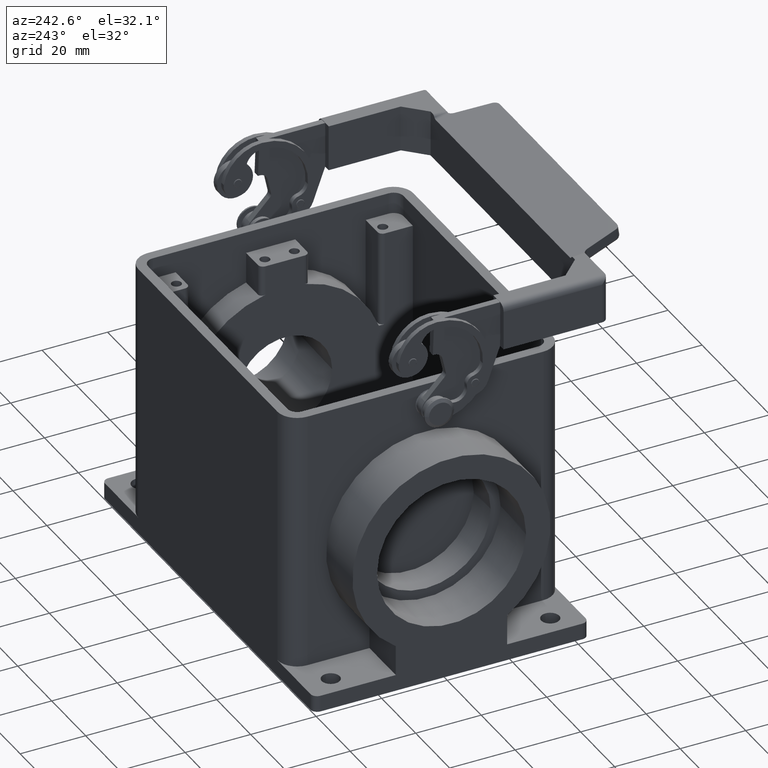
[diagram: clean part render]
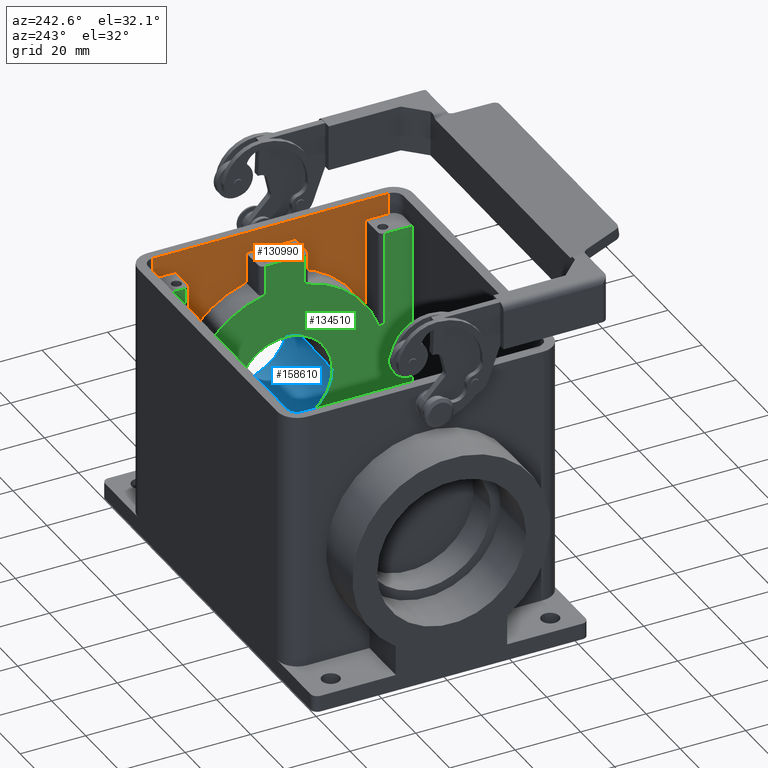
[diagram: same view with three faces highlighted in distinct colors, each labeled with its STEP entity id]
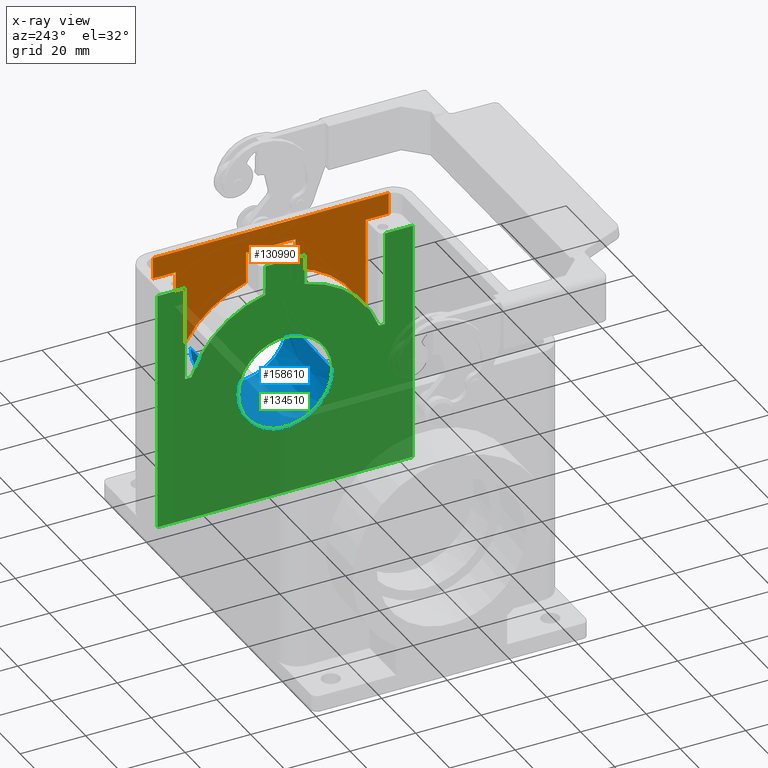
[diagram: x-ray of the same camera — body ghosted, the three highlighted faces saturated]
A machine part, auxiliary view with three faces highlighted in distinct colors.
The next image is the same camera in x-ray (body ghosted, the three faces saturated) — at least one of them is partly hidden behind the body in this view.
Their STEP definitions:

[orange] entity #130990 — the highlighted planar face has unit normal (-1, 0, 0).
#6710=CARTESIAN_POINT('',(43.999,-28.632235330131,-6.00000000000003));
#6720=VERTEX_POINT('',#6710);
#7120=CARTESIAN_POINT('',(43.999,-7.49999999999998,13.5455028962138));
#7130=VERTEX_POINT('',#7120);
#7160=CARTESIAN_POINT('',(43.999,2.44249065417534E-15,-15.7600000000001)
);
#7170=DIRECTION('',(1.,0.,0.));
#7180=DIRECTION('',(0.,1.,0.));
#7190=AXIS2_PLACEMENT_3D('',#7160,#7170,#7180);
#7200=CIRCLE('',#7190,30.25);
#7210=EDGE_CURVE('',#7130,#6720,#7200,.T.);
#44780=CARTESIAN_POINT('',(44.,36.,29.5));
#44790=VERTEX_POINT('',#44780);
#44820=CARTESIAN_POINT('',(44.,36.,29.5));
#44830=DIRECTION('',(0.,0.,-1.));
#44840=VECTOR('',#44830,1.);
#44850=LINE('',#44820,#44840);
#44860=CARTESIAN_POINT('',(44.,36.,23.));
#44870=VERTEX_POINT('',#44860);
#44880=EDGE_CURVE('',#44790,#44870,#44850,.T.);
#59670=CARTESIAN_POINT('',(44.,7.49999999999998,23.));
#59680=VERTEX_POINT('',#59670);
#59710=CARTESIAN_POINT('',(43.999,0.,23.));
#59720=DIRECTION('',(-0.,-1.,0.));
#59730=VECTOR('',#59720,1.);
#59740=LINE('',#59710,#59730);
#59750=CARTESIAN_POINT('',(44.,-7.5,23.));
#59760=VERTEX_POINT('',#59750);
#59770=EDGE_CURVE('',#59680,#59760,#59740,.T.);
#77930=CARTESIAN_POINT('',(43.999,-7.5,0.));
#77940=DIRECTION('',(-0.,0.,-1.));
#77950=VECTOR('',#77940,1.);
#77960=LINE('',#77930,#77950);
#77970=EDGE_CURVE('',#59760,#7130,#77960,.T.);
#105230=CARTESIAN_POINT('',(44.,-36.,29.5));
#105240=VERTEX_POINT('',#105230);
#105270=CARTESIAN_POINT('',(43.999,0.,29.5));
#105280=DIRECTION('',(-0.,-1.,0.));
#105290=VECTOR('',#105280,1.);
#105300=LINE('',#105270,#105290);
#105310=EDGE_CURVE('',#44790,#105240,#105300,.T.);
#130230=CARTESIAN_POINT('',(43.999,-1.8,23.2));
#130240=DIRECTION('',(-1.,0.,0.));
#130250=DIRECTION('',(0.,1.,0.));
#130260=AXIS2_PLACEMENT_3D('',#130230,#130240,#130250);
#130270=PLANE('',#130260);
#130280=ORIENTED_EDGE('',*,*,#77970,.T.);
#130290=ORIENTED_EDGE('',*,*,#59770,.T.);
#130300=CARTESIAN_POINT('',(43.999,7.49999999999998,0.));
#130310=DIRECTION('',(0.,0.,1.));
#130320=VECTOR('',#130310,1.);
#130330=LINE('',#130300,#130320);
#130340=CARTESIAN_POINT('',(44.,7.49999999999998,13.5455028962138));
#130350=VERTEX_POINT('',#130340);
#130360=EDGE_CURVE('',#130350,#59680,#130330,.T.);
#130370=ORIENTED_EDGE('',*,*,#130360,.T.);
#130380=CARTESIAN_POINT('',(44.,28.632235330131,-6.00000000000001));
#130390=VERTEX_POINT('',#130380);
#130400=EDGE_CURVE('',#130390,#130350,#7200,.T.);
#130410=ORIENTED_EDGE('',*,*,#130400,.T.);
#130420=CARTESIAN_POINT('',(43.999,0.,-6.00000000000001));
#130430=DIRECTION('',(-0.,-1.,0.));
#130440=VECTOR('',#130430,1.);
#130450=LINE('',#130420,#130440);
#130460=CARTESIAN_POINT('',(44.,29.,-6.00000000000001));
#130470=VERTEX_POINT('',#130460);
#130480=EDGE_CURVE('',#130470,#130390,#130450,.T.);
#130490=ORIENTED_EDGE('',*,*,#130480,.T.);
#130500=CARTESIAN_POINT('',(43.999,29.,0.));
#130510=DIRECTION('',(-0.,0.,-1.));
#130520=VECTOR('',#130510,1.);
#130530=LINE('',#130500,#130520);
#130540=CARTESIAN_POINT('',(44.,29.,23.));
#130550=VERTEX_POINT('',#130540);
#130560=EDGE_CURVE('',#130550,#130470,#130530,.T.);
#130570=ORIENTED_EDGE('',*,*,#130560,.T.);
#130580=CARTESIAN_POINT('',(43.999,0.,23.));
#130590=DIRECTION('',(-0.,-1.,0.));
#130600=VECTOR('',#130590,1.);
#130610=LINE('',#130580,#130600);
#130620=EDGE_CURVE('',#44870,#130550,#130610,.T.);
#130630=ORIENTED_EDGE('',*,*,#130620,.T.);
#130640=ORIENTED_EDGE('',*,*,#44880,.T.);
#130650=ORIENTED_EDGE('',*,*,#105310,.F.);
#130660=CARTESIAN_POINT('',(44.,-36.,29.5));
#130670=DIRECTION('',(0.,0.,-1.));
#130680=VECTOR('',#130670,1.);
#130690=LINE('',#130660,#130680);
#130700=CARTESIAN_POINT('',(44.,-36.,23.));
#130710=VERTEX_POINT('',#130700);
#130720=EDGE_CURVE('',#105240,#130710,#130690,.T.);
#130730=ORIENTED_EDGE('',*,*,#130720,.F.);
#130740=CARTESIAN_POINT('',(43.999,0.,23.));
#130750=DIRECTION('',(-0.,-1.,0.));
#130760=VECTOR('',#130750,1.);
#130770=LINE('',#130740,#130760);
#130780=CARTESIAN_POINT('',(44.,-29.,23.));
#130790=VERTEX_POINT('',#130780);
#130800=EDGE_CURVE('',#130790,#130710,#130770,.T.);
#130810=ORIENTED_EDGE('',*,*,#130800,.T.);
#130820=CARTESIAN_POINT('',(43.999,-29.,0.));
#130830=DIRECTION('',(0.,0.,1.));
#130840=VECTOR('',#130830,1.);
#130850=LINE('',#130820,#130840);
#130860=CARTESIAN_POINT('',(44.,-29.,-6.00000000000001));
#130870=VERTEX_POINT('',#130860);
#130880=EDGE_CURVE('',#130870,#130790,#130850,.T.);
#130890=ORIENTED_EDGE('',*,*,#130880,.T.);
#130900=CARTESIAN_POINT('',(43.999,0.,-6.00000000000001));
#130910=DIRECTION('',(-0.,-1.,0.));
#130920=VECTOR('',#130910,1.);
#130930=LINE('',#130900,#130920);
#130940=EDGE_CURVE('',#6720,#130870,#130930,.T.);
#130950=ORIENTED_EDGE('',*,*,#130940,.T.);
#130960=ORIENTED_EDGE('',*,*,#7210,.T.);
#130970=EDGE_LOOP('',(#130960,#130950,#130890,#130810,#130730,#130650,
#130640,#130630,#130570,#130490,#130410,#130370,#130290,#130280));
#130980=FACE_OUTER_BOUND('',#130970,.T.);
#130990=ADVANCED_FACE('',(#130980),#130270,.T.);

[blue] entity #158610 — the highlighted conical surface has half-angle 1 deg.
#133620=CARTESIAN_POINT('',(35.5,0.,-15.76));
#133630=DIRECTION('',(1.,0.,0.));
#133640=DIRECTION('',(0.,1.,0.));
#133650=AXIS2_PLACEMENT_3D('',#133620,#133630,#133640);
#133660=CIRCLE('',#133650,14.3787132469381);
#133670=CARTESIAN_POINT('',(35.5,14.3787132469381,-15.76));
#133680=VERTEX_POINT('',#133670);
#133690=CARTESIAN_POINT('',(35.5,-14.3787132469381,-15.76));
#133700=VERTEX_POINT('',#133690);
#133730=EDGE_CURVE('',#133700,#133680,#133660,.T.);
#143130=CARTESIAN_POINT('',(62.5,0.,-15.76));
#143140=DIRECTION('',(1.,0.,0.));
#143150=DIRECTION('',(0.,1.,0.));
#143160=AXIS2_PLACEMENT_3D('',#143130,#143140,#143150);
#143170=CIRCLE('',#143160,14.85);
#143180=CARTESIAN_POINT('',(62.5,14.85,-15.76));
#143190=VERTEX_POINT('',#143180);
#143200=CARTESIAN_POINT('',(62.5,-14.85,-15.76));
#143210=VERTEX_POINT('',#143200);
#143240=EDGE_CURVE('',#143210,#143190,#143170,.T.);
#158400=CARTESIAN_POINT('',(62.5,0.,-15.76));
#158410=DIRECTION('',(1.,0.,0.));
#158420=DIRECTION('',(0.,1.,0.));
#158430=AXIS2_PLACEMENT_3D('',#158400,#158410,#158420);
#158440=CONICAL_SURFACE('',#158430,14.85,0.0174532925199433);
#158450=CARTESIAN_POINT('',(62.5,-14.85,-15.76));
#158460=DIRECTION('',(0.999847695156391,-0.0174524064372835,
2.0876566692836E-18));
#158470=VECTOR('',#158460,850.88552420347);
#158480=LINE('',#158450,#158470);
#158490=EDGE_CURVE('',#133700,#143210,#158480,.T.);
#158500=ORIENTED_EDGE('',*,*,#158490,.T.);
#158510=ORIENTED_EDGE('',*,*,#133730,.F.);
#158520=CARTESIAN_POINT('',(62.5,14.85,-15.76));
#158530=DIRECTION('',(0.999847695156391,0.0174524064372835,0.));
#158540=VECTOR('',#158530,850.88552420347);
#158550=LINE('',#158520,#158540);
#158560=EDGE_CURVE('',#133680,#143190,#158550,.T.);
#158570=ORIENTED_EDGE('',*,*,#158560,.F.);
#158580=ORIENTED_EDGE('',*,*,#143240,.T.);
#158590=EDGE_LOOP('',(#158580,#158570,#158510,#158500));
#158600=FACE_OUTER_BOUND('',#158590,.T.);
#158610=ADVANCED_FACE('',(#158600),#158440,.F.);

[green] entity #134510 — the highlighted planar face has unit normal (-1, 0, 0).
#6690=CARTESIAN_POINT('',(35.5,-28.632235330131,-6.00000000000002));
#6700=VERTEX_POINT('',#6690);
#6750=CARTESIAN_POINT('',(35.5,7.28306304154103E-14,-15.7600000000001));
#6760=DIRECTION('',(-1.,0.,0.));
#6770=DIRECTION('',(0.,1.,0.));
#6780=AXIS2_PLACEMENT_3D('',#6750,#6760,#6770);
#6790=CIRCLE('',#6780,30.2500000000002);
#6800=CARTESIAN_POINT('',(35.5,-5.99999999999999,13.8889881783511));
#6810=VERTEX_POINT('',#6800);
#6820=EDGE_CURVE('',#6700,#6810,#6790,.T.);
#59590=CARTESIAN_POINT('',(35.5,5.99999999999998,23.));
#59600=VERTEX_POINT('',#59590);
#59920=CARTESIAN_POINT('',(35.5,-6.,23.));
#59930=VERTEX_POINT('',#59920);
#59960=CARTESIAN_POINT('',(35.5,0.,23.));
#59970=DIRECTION('',(-0.,-1.,0.));
#59980=VECTOR('',#59970,1.);
#59990=LINE('',#59960,#59980);
#60000=EDGE_CURVE('',#59600,#59930,#59990,.T.);
#80080=CARTESIAN_POINT('',(35.5,39.,-51.));
#80090=VERTEX_POINT('',#80080);
#80490=CARTESIAN_POINT('',(35.5,39.,23.));
#80500=VERTEX_POINT('',#80490);
#80530=CARTESIAN_POINT('',(35.5,39.,0.));
#80540=DIRECTION('',(0.,0.,1.));
#80550=VECTOR('',#80540,1.);
#80560=LINE('',#80530,#80550);
#80570=EDGE_CURVE('',#80090,#80500,#80560,.T.);
#118970=CARTESIAN_POINT('',(35.5,-39.,-51.));
#118980=VERTEX_POINT('',#118970);
#119010=CARTESIAN_POINT('',(35.5,-39.,0.));
#119020=DIRECTION('',(0.,0.,-1.));
#119030=VECTOR('',#119020,1.);
#119040=LINE('',#119010,#119030);
#119050=CARTESIAN_POINT('',(35.5,-39.,23.));
#119060=VERTEX_POINT('',#119050);
#119070=EDGE_CURVE('',#119060,#118980,#119040,.T.);
#133380=CARTESIAN_POINT('',(35.5,-6.,23.));
#133390=DIRECTION('',(0.,0.,-1.));
#133400=VECTOR('',#133390,1.);
#133410=LINE('',#133380,#133400);
#133420=EDGE_CURVE('',#59930,#6810,#133410,.T.);
#133570=CARTESIAN_POINT('',(35.5,-46.8,-58.4));
#133580=DIRECTION('',(-1.,0.,0.));
#133590=DIRECTION('',(0.,1.,0.));
#133600=AXIS2_PLACEMENT_3D('',#133570,#133580,#133590);
#133610=PLANE('',#133600);
#133620=CARTESIAN_POINT('',(35.5,0.,-15.76));
#133630=DIRECTION('',(1.,0.,0.));
#133640=DIRECTION('',(0.,1.,0.));
#133650=AXIS2_PLACEMENT_3D('',#133620,#133630,#133640);
#133660=CIRCLE('',#133650,14.3787132469381);
#133670=CARTESIAN_POINT('',(35.5,14.3787132469381,-15.76));
#133680=VERTEX_POINT('',#133670);
#133690=CARTESIAN_POINT('',(35.5,-14.3787132469381,-15.76));
#133700=VERTEX_POINT('',#133690);
#133710=EDGE_CURVE('',#133680,#133700,#133660,.T.);
#133720=ORIENTED_EDGE('',*,*,#133710,.T.);
#133730=EDGE_CURVE('',#133700,#133680,#133660,.T.);
#133740=ORIENTED_EDGE('',*,*,#133730,.T.);
#133750=EDGE_LOOP('',(#133740,#133720));
#133760=FACE_BOUND('',#133750,.T.);
#133770=ORIENTED_EDGE('',*,*,#80570,.F.);
#133780=CARTESIAN_POINT('',(35.5,0.,23.));
#133790=DIRECTION('',(-0.,-1.,0.));
#133800=VECTOR('',#133790,1.);
#133810=LINE('',#133780,#133800);
#133820=CARTESIAN_POINT('',(35.5,30.5,23.));
#133830=VERTEX_POINT('',#133820);
#133840=EDGE_CURVE('',#80500,#133830,#133810,.T.);
#133850=ORIENTED_EDGE('',*,*,#133840,.F.);
#133860=CARTESIAN_POINT('',(35.5,30.5,23.));
#133870=DIRECTION('',(0.,0.,-1.));
#133880=VECTOR('',#133870,1.);
#133890=LINE('',#133860,#133880);
#133900=CARTESIAN_POINT('',(35.5,30.5,-6.00000000000001));
#133910=VERTEX_POINT('',#133900);
#133920=EDGE_CURVE('',#133830,#133910,#133890,.T.);
#133930=ORIENTED_EDGE('',*,*,#133920,.F.);
#133940=CARTESIAN_POINT('',(35.5,0.,-6.00000000000001));
#133950=DIRECTION('',(0.,1.,-0.));
#133960=VECTOR('',#133950,1.);
#133970=LINE('',#133940,#133960);
#133980=CARTESIAN_POINT('',(35.5,28.632235330131,-6.00000000000002));
#133990=VERTEX_POINT('',#133980);
#134000=EDGE_CURVE('',#133990,#133910,#133970,.T.);
#134010=ORIENTED_EDGE('',*,*,#134000,.T.);
#134020=CARTESIAN_POINT('',(35.5,1.4210854715202E-14,-15.76));
#134030=DIRECTION('',(-1.,0.,0.));
#134040=DIRECTION('',(0.,1.,0.));
#134050=AXIS2_PLACEMENT_3D('',#134020,#134030,#134040);
#134060=CIRCLE('',#134050,30.25);
#134070=CARTESIAN_POINT('',(35.5,5.99999999999998,13.888988178351));
#134080=VERTEX_POINT('',#134070);
#134090=EDGE_CURVE('',#134080,#133990,#134060,.T.);
#134100=ORIENTED_EDGE('',*,*,#134090,.T.);
#134110=CARTESIAN_POINT('',(35.5,5.99999999999998,23.));
#134120=DIRECTION('',(0.,0.,-1.));
#134130=VECTOR('',#134120,1.);
#134140=LINE('',#134110,#134130);
#134150=EDGE_CURVE('',#59600,#134080,#134140,.T.);
#134160=ORIENTED_EDGE('',*,*,#134150,.T.);
#134170=ORIENTED_EDGE('',*,*,#60000,.F.);
#134180=ORIENTED_EDGE('',*,*,#133420,.F.);
#134190=ORIENTED_EDGE('',*,*,#6820,.T.);
#134200=CARTESIAN_POINT('',(35.5,0.,-6.00000000000001));
#134210=DIRECTION('',(0.,1.,-0.));
#134220=VECTOR('',#134210,1.);
#134230=LINE('',#134200,#134220);
#134240=CARTESIAN_POINT('',(35.5,-30.5,-6.00000000000001));
#134250=VERTEX_POINT('',#134240);
#134260=EDGE_CURVE('',#134250,#6700,#134230,.T.);
#134270=ORIENTED_EDGE('',*,*,#134260,.T.);
#134280=CARTESIAN_POINT('',(35.5,-30.5,23.));
#134290=DIRECTION('',(0.,0.,-1.));
#134300=VECTOR('',#134290,1.);
#134310=LINE('',#134280,#134300);
#134320=CARTESIAN_POINT('',(35.5,-30.5,23.));
#134330=VERTEX_POINT('',#134320);
#134340=EDGE_CURVE('',#134330,#134250,#134310,.T.);
#134350=ORIENTED_EDGE('',*,*,#134340,.T.);
#134360=CARTESIAN_POINT('',(35.5,0.,23.));
#134370=DIRECTION('',(-0.,-1.,0.));
#134380=VECTOR('',#134370,1.);
#134390=LINE('',#134360,#134380);
#134400=EDGE_CURVE('',#134330,#119060,#134390,.T.);
#134410=ORIENTED_EDGE('',*,*,#134400,.F.);
#134420=ORIENTED_EDGE('',*,*,#119070,.F.);
#134430=CARTESIAN_POINT('',(35.5,0.,-51.));
#134440=DIRECTION('',(0.,1.,-0.));
#134450=VECTOR('',#134440,1.);
#134460=LINE('',#134430,#134450);
#134470=EDGE_CURVE('',#118980,#80090,#134460,.T.);
#134480=ORIENTED_EDGE('',*,*,#134470,.F.);
#134490=EDGE_LOOP('',(#134480,#134420,#134410,#134350,#134270,#134190,
#134180,#134170,#134160,#134100,#134010,#133930,#133850,#133770));
#134500=FACE_OUTER_BOUND('',#134490,.T.);
#134510=ADVANCED_FACE('',(#133760,#134500),#133610,.T.);